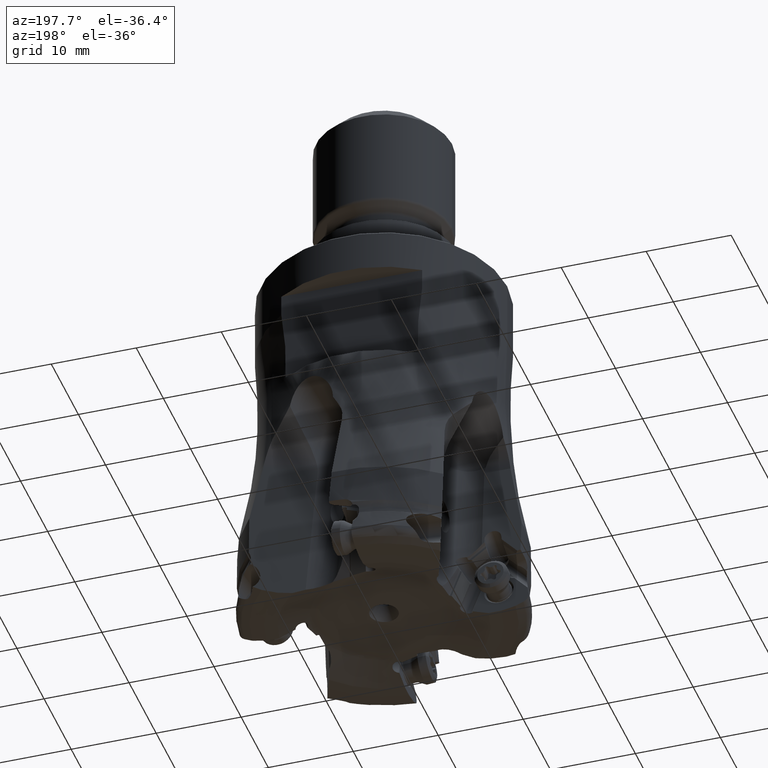
[diagram: clean part render]
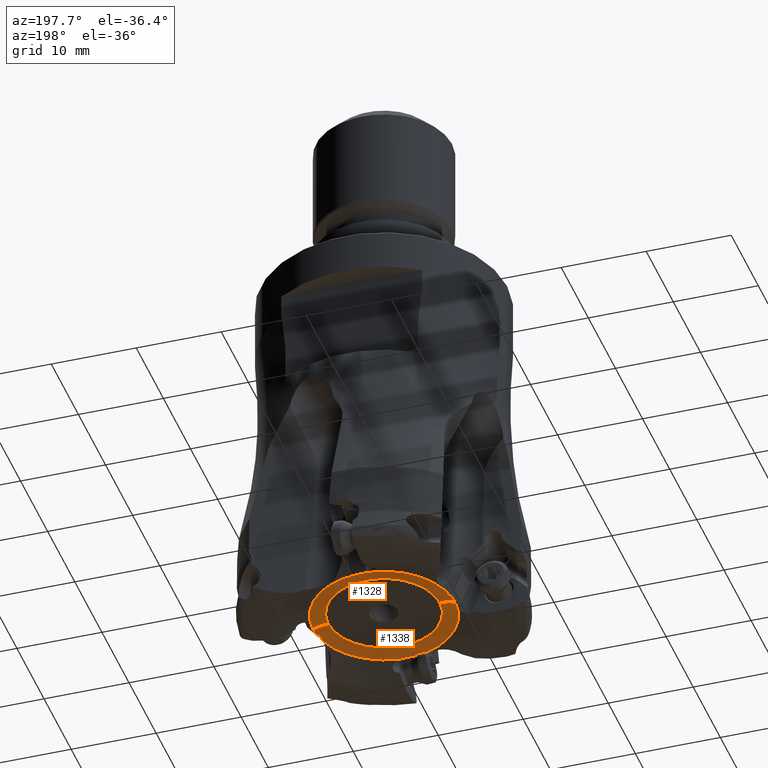
[diagram: same view with one multi-face feature highlighted, each face labeled with its STEP entity id]
A machine part, auxiliary view. The highlighted faces form ONE feature: a constant-radius fillet chain: 2 tangent blend faces with common blend radius 5 mm. The faces share edges in the B-rep.
Their STEP definitions:
[1] entity #1328 (Torus):
#129=TOROIDAL_SURFACE('',#9296,6.566225817198,4.999999999999);
#1328=ADVANCED_FACE('',(#1901),#129,.F.);
#1901=FACE_OUTER_BOUND('',#2384,.T.);
#2384=EDGE_LOOP('',(#3439,#3440,#3441,#3442,#3443,#3444,#3445,#3446,#3447,
#3448,#3449,#3450));
#2897=CIRCLE('',#9283,8.370834190696);
#2900=CIRCLE('',#9291,8.370834190696);
#2901=CIRCLE('',#9292,4.999999999999);
#2902=CIRCLE('',#9293,6.5662258172);
#2903=CIRCLE('',#9294,4.999999999999);
#2904=CIRCLE('',#9295,8.370834190696);
#3439=ORIENTED_EDGE('',*,*,#7209,.F.);
#3440=ORIENTED_EDGE('',*,*,#7210,.T.);
#3441=ORIENTED_EDGE('',*,*,#7211,.T.);
#3442=ORIENTED_EDGE('',*,*,#7212,.T.);
#3443=ORIENTED_EDGE('',*,*,#7193,.F.);
#3444=ORIENTED_EDGE('',*,*,#7208,.T.);
#3445=ORIENTED_EDGE('',*,*,#7213,.T.);
#3446=ORIENTED_EDGE('',*,*,#7214,.T.);
#3447=ORIENTED_EDGE('',*,*,#7215,.F.);
#3448=ORIENTED_EDGE('',*,*,#7216,.F.);
#3449=ORIENTED_EDGE('',*,*,#7217,.F.);
#3450=ORIENTED_EDGE('',*,*,#7218,.F.);
#6243=VERTEX_POINT('',#13287);
#6245=VERTEX_POINT('',#13290);
#6256=VERTEX_POINT('',#13373);
#6257=VERTEX_POINT('',#13382);
#6258=VERTEX_POINT('',#13383);
#6259=VERTEX_POINT('',#13385);
#6260=VERTEX_POINT('',#13387);
#6261=VERTEX_POINT('',#13402);
#6262=VERTEX_POINT('',#13407);
#6263=VERTEX_POINT('',#13409);
#6264=VERTEX_POINT('',#13416);
#6265=VERTEX_POINT('',#13430);
#7193=EDGE_CURVE('',#6243,#6245,#2897,.T.);
#7208=EDGE_CURVE('',#6243,#6256,#8595,.T.);
#7209=EDGE_CURVE('',#6257,#6258,#2900,.T.);
#7210=EDGE_CURVE('',#6257,#6259,#2901,.T.);
#7211=EDGE_CURVE('',#6259,#6260,#2902,.T.);
#7212=EDGE_CURVE('',#6260,#6245,#2903,.T.);
#7213=EDGE_CURVE('',#6256,#6261,#8596,.T.);
#7214=EDGE_CURVE('',#6261,#6262,#8597,.T.);
#7215=EDGE_CURVE('',#6263,#6262,#2904,.T.);
#7216=EDGE_CURVE('',#6264,#6263,#8598,.T.);
#7217=EDGE_CURVE('',#6265,#6264,#8599,.T.);
#7218=EDGE_CURVE('',#6258,#6265,#8600,.T.);
#8595=B_SPLINE_CURVE_WITH_KNOTS('',3,(#13374,#13375,#13376,#13377,#13378,
#13379),.UNSPECIFIED.,.F.,.F.,(4,1,1,4),(0.,0.3333333333333,0.6666666666667,
1.),.UNSPECIFIED.);
#8596=B_SPLINE_CURVE_WITH_KNOTS('',3,(#13389,#13390,#13391,#13392,#13393,
#13394,#13395,#13396,#13397,#13398,#13399,#13400,#13401),.UNSPECIFIED.,
 .F.,.F.,(4,1,1,1,1,1,1,1,1,1,4),(0.,0.1,0.2,0.3,0.4,0.5,0.6,0.7,0.8,0.9,
1.),.UNSPECIFIED.);
#8597=B_SPLINE_CURVE_WITH_KNOTS('',3,(#13403,#13404,#13405,#13406),
 .UNSPECIFIED.,.F.,.F.,(4,4),(0.,1.),.UNSPECIFIED.);
#8598=B_SPLINE_CURVE_WITH_KNOTS('',3,(#13410,#13411,#13412,#13413,#13414,
#13415),.UNSPECIFIED.,.F.,.F.,(4,1,1,4),(0.,0.3333333333333,0.6666666666667,
1.),.UNSPECIFIED.);
#8599=B_SPLINE_CURVE_WITH_KNOTS('',3,(#13417,#13418,#13419,#13420,#13421,
#13422,#13423,#13424,#13425,#13426,#13427,#13428,#13429),.UNSPECIFIED.,
 .F.,.F.,(4,1,1,1,1,1,1,1,1,1,4),(0.,0.1,0.2,0.3,0.4,0.5,0.6,0.7,0.8,0.9,
1.),.UNSPECIFIED.);
#8600=B_SPLINE_CURVE_WITH_KNOTS('',3,(#13431,#13432,#13433,#13434,#13435,
#13436),.UNSPECIFIED.,.F.,.F.,(4,1,1,4),(0.,0.3333333333333,0.6666666666667,
1.),.UNSPECIFIED.);
#9283=AXIS2_PLACEMENT_3D('',#13289,#10375,#10376);
#9291=AXIS2_PLACEMENT_3D('',#13381,#10394,#10395);
#9292=AXIS2_PLACEMENT_3D('',#13384,#10396,#10397);
#9293=AXIS2_PLACEMENT_3D('',#13386,#10398,#10399);
#9294=AXIS2_PLACEMENT_3D('',#13388,#10400,#10401);
#9295=AXIS2_PLACEMENT_3D('',#13408,#10402,#10403);
#9296=AXIS2_PLACEMENT_3D('',#13437,#10404,#10405);
#10375=DIRECTION('',(0.,0.,1.));
#10376=DIRECTION('',(-0.988644073315362,0.150276066951494,0.));
#10394=DIRECTION('',(0.,0.,1.));
#10395=DIRECTION('',(1.,0.,0.));
#10396=DIRECTION('',(0.,-1.,0.));
#10397=DIRECTION('',(0.360921674699783,0.,0.932596131630357));
#10398=DIRECTION('',(0.,0.,1.));
#10399=DIRECTION('',(1.,0.,0.));
#10400=DIRECTION('',(0.,-1.,0.));
#10401=DIRECTION('',(-4.57793525310371E-13,0.,1.));
#10402=DIRECTION('',(0.,0.,1.));
#10403=DIRECTION('',(0.150276066951494,0.988644073315362,0.));
#10404=DIRECTION('',(0.,0.,-1.));
#10405=DIRECTION('',(0.999998628329235,0.00165630300604606,0.));
#13287=CARTESIAN_POINT('',(-8.27577561133634,1.25793603928164,-42.9106520848031));
#13289=CARTESIAN_POINT('',(1.95399252334E-14,-1.516374499104E-14,-42.9106520848));
#13290=CARTESIAN_POINT('',(-8.370834190696,6.89732082502E-14,-42.9106520848));
#13373=CARTESIAN_POINT('',(-8.258263599804,1.257350126115,-42.90395506666));
#13374=CARTESIAN_POINT('',(-8.275775611338,1.257936039281,-42.9106520848));
#13375=CARTESIAN_POINT('',(-8.273831234403,1.257870619819,-42.90990433693));
#13376=CARTESIAN_POINT('',(-8.269941545582,1.257739992923,-42.90841126467));
#13377=CARTESIAN_POINT('',(-8.264104202645,1.257544688328,-42.90617892293));
#13378=CARTESIAN_POINT('',(-8.260210778349,1.257414909514,-42.9046955443));
#13379=CARTESIAN_POINT('',(-8.258263599804,1.257350126115,-42.90395506666));
#13381=CARTESIAN_POINT('',(1.95399252334E-14,-1.516374499104E-14,-42.9106520848));
#13382=CARTESIAN_POINT('',(8.370834190696,-1.344427087443E-14,-42.9106520848));
#13383=CARTESIAN_POINT('',(2.427920683142,8.010999183472,-42.91064450965));
#13384=CARTESIAN_POINT('',(6.566225817198,-1.433575480547E-14,-47.57363274295));
#13385=CARTESIAN_POINT('',(6.5662258172,-1.440514374452E-14,-42.57363274295));
#13386=CARTESIAN_POINT('',(1.95399252334E-14,-1.516842207395E-14,-42.57363274295));
#13387=CARTESIAN_POINT('',(-6.5662258172,0.,-42.57363274295));
#13388=CARTESIAN_POINT('',(-6.566225817198,0.,-47.57363274295));
#13389=CARTESIAN_POINT('',(-8.258263599804,1.257350126115,-42.90395506666));
#13390=CARTESIAN_POINT('',(-8.248514398632,1.257025766342,-42.9002476175));
#13391=CARTESIAN_POINT('',(-8.228913660003,1.258026944611,-42.89295879887));
#13392=CARTESIAN_POINT('',(-8.199897206746,1.264472959203,-42.88264872624));
#13393=CARTESIAN_POINT('',(-8.172082340296,1.275691875805,-42.8732274335));
#13394=CARTESIAN_POINT('',(-8.14617456712,1.291369643441,-42.86489695586));
#13395=CARTESIAN_POINT('',(-8.122751015214,1.311142230743,-42.85780433242));
#13396=CARTESIAN_POINT('',(-8.102321050327,1.334629970397,-42.85206770101));
#13397=CARTESIAN_POINT('',(-8.08546828145,1.361286246195,-42.84782168716));
#13398=CARTESIAN_POINT('',(-8.072728617774,1.390228794277,-42.84517006452));
#13399=CARTESIAN_POINT('',(-8.064292730606,1.421101612402,-42.84413706507));
#13400=CARTESIAN_POINT('',(-8.061768683534,1.442313439277,-42.84456107809));
#13401=CARTESIAN_POINT('',(-8.061295233986,1.452960582481,-42.84504997034));
#13402=CARTESIAN_POINT('',(-8.06129518926591,1.45296058119044,-42.8450499551385));
#13403=CARTESIAN_POINT('',(-8.06129518926591,1.45296058119044,-42.8450499551385));
#13404=CARTESIAN_POINT('',(-8.04682161123385,1.77844883483276,-42.8599956224347));
#13405=CARTESIAN_POINT('',(-8.03021326197871,2.10365333002213,-42.8813704957224));
#13406=CARTESIAN_POINT('',(-8.01099683249801,2.42791985319248,-42.9106520851623));
#13407=CARTESIAN_POINT('',(-8.01099683249801,2.42791985319248,-42.9106520851623));
#13408=CARTESIAN_POINT('',(1.95399252334E-14,-1.516374499104E-14,-42.9106520848));
#13409=CARTESIAN_POINT('',(1.25793603928074,8.27577561133712,-42.9106520848));
#13410=CARTESIAN_POINT('',(1.257350126114,8.258263599788,-42.90395506665));
#13411=CARTESIAN_POINT('',(1.257414915415,8.260210955736,-42.90469561176));
#13412=CARTESIAN_POINT('',(1.257544702154,8.264104616337,-42.90617908096));
#13413=CARTESIAN_POINT('',(1.257740006774,8.269941959134,-42.90841142299));
#13414=CARTESIAN_POINT('',(1.257870625779,8.273831411535,-42.90990440505));
#13415=CARTESIAN_POINT('',(1.257936039281,8.275775611337,-42.9106520848));
#13416=CARTESIAN_POINT('',(1.257350126114,8.258263599788,-42.90395506665));
#13417=CARTESIAN_POINT('',(1.452960582351,8.06129523399,-42.84504997032));
#13418=CARTESIAN_POINT('',(1.442321563633,8.061768322264,-42.84456145112));
#13419=CARTESIAN_POINT('',(1.421124211636,8.064289324744,-42.84413702217));
#13420=CARTESIAN_POINT('',(1.390264907497,8.07271646122,-42.84516824025));
#13421=CARTESIAN_POINT('',(1.361331800907,8.085444835886,-42.84781652783));
#13422=CARTESIAN_POINT('',(1.334681670789,8.102283192222,-42.85205734209));
#13423=CARTESIAN_POINT('',(1.311187905387,8.122704545214,-42.85779079432));
#13424=CARTESIAN_POINT('',(1.291405754993,8.146124136627,-42.86488140243));
#13425=CARTESIAN_POINT('',(1.275717720505,8.172029974459,-42.87320992926));
#13426=CARTESIAN_POINT('',(1.264485560305,8.199853521033,-42.88263344773));
#13427=CARTESIAN_POINT('',(1.258029072552,8.228888758612,-42.89294963588));
#13428=CARTESIAN_POINT('',(1.25702547253,8.248505567578,-42.9002442592));
#13429=CARTESIAN_POINT('',(1.257350126114,8.258263599788,-42.90395506665));
#13430=CARTESIAN_POINT('',(1.452960582351,8.06129523399,-42.84504997032));
#13431=CARTESIAN_POINT('',(2.427920683142,8.010999183472,-42.91064450965));
#13432=CARTESIAN_POINT('',(2.319935996017,8.017398488231,-42.90089338338));
#13433=CARTESIAN_POINT('',(2.103722571254,8.029613796134,-42.88316314587));
#13434=CARTESIAN_POINT('',(1.778671621938,8.046329918523,-42.86145091006));
#13435=CARTESIAN_POINT('',(1.561596996604,8.056464467629,-42.85003830384));
#13436=CARTESIAN_POINT('',(1.452960582351,8.06129523399,-42.84504997032));
#13437=CARTESIAN_POINT('',(1.95399252334E-14,-1.50990331349E-14,-47.57363274295));
[2] entity #1338 (Torus):
#130=TOROIDAL_SURFACE('',#9323,6.566225817198,4.999999999999);
#1338=ADVANCED_FACE('',(#1909),#130,.F.);
#1909=FACE_OUTER_BOUND('',#2396,.T.);
#2396=EDGE_LOOP('',(#3534,#3535,#3536,#3537,#3538,#3539,#3540,#3541,#3542,
#3543,#3544,#3545));
#2889=CIRCLE('',#9258,8.370834190696);
#2898=CIRCLE('',#9284,8.370834190696);
#2901=CIRCLE('',#9292,4.999999999999);
#2903=CIRCLE('',#9294,4.999999999999);
#2906=CIRCLE('',#9300,8.370834190696);
#2914=CIRCLE('',#9322,6.5662258172);
#3534=ORIENTED_EDGE('',*,*,#7131,.F.);
#3535=ORIENTED_EDGE('',*,*,#7182,.F.);
#3536=ORIENTED_EDGE('',*,*,#7185,.F.);
#3537=ORIENTED_EDGE('',*,*,#7188,.F.);
#3538=ORIENTED_EDGE('',*,*,#7194,.F.);
#3539=ORIENTED_EDGE('',*,*,#7212,.F.);
#3540=ORIENTED_EDGE('',*,*,#7283,.T.);
#3541=ORIENTED_EDGE('',*,*,#7210,.F.);
#3542=ORIENTED_EDGE('',*,*,#7231,.F.);
#3543=ORIENTED_EDGE('',*,*,#7282,.T.);
#3544=ORIENTED_EDGE('',*,*,#7284,.T.);
#3545=ORIENTED_EDGE('',*,*,#7285,.T.);
#6191=VERTEX_POINT('',#12770);
#6192=VERTEX_POINT('',#12772);
#6236=VERTEX_POINT('',#13207);
#6238=VERTEX_POINT('',#13225);
#6240=VERTEX_POINT('',#13254);
#6245=VERTEX_POINT('',#13290);
#6257=VERTEX_POINT('',#13382);
#6259=VERTEX_POINT('',#13385);
#6260=VERTEX_POINT('',#13387);
#6277=VERTEX_POINT('',#13537);
#6320=VERTEX_POINT('',#13946);
#6321=VERTEX_POINT('',#13968);
#7131=EDGE_CURVE('',#6191,#6192,#2889,.T.);
#7182=EDGE_CURVE('',#6236,#6191,#8581,.T.);
#7185=EDGE_CURVE('',#6238,#6236,#8582,.T.);
#7188=EDGE_CURVE('',#6240,#6238,#8584,.T.);
#7194=EDGE_CURVE('',#6245,#6240,#2898,.T.);
#7210=EDGE_CURVE('',#6257,#6259,#2901,.T.);
#7212=EDGE_CURVE('',#6260,#6245,#2903,.T.);
#7231=EDGE_CURVE('',#6277,#6257,#2906,.T.);
#7282=EDGE_CURVE('',#6277,#6320,#8634,.T.);
#7283=EDGE_CURVE('',#6260,#6259,#2914,.T.);
#7284=EDGE_CURVE('',#6320,#6321,#8635,.T.);
#7285=EDGE_CURVE('',#6321,#6192,#8636,.T.);
#8581=B_SPLINE_CURVE_WITH_KNOTS('',3,(#13201,#13202,#13203,#13204,#13205,
#13206),.UNSPECIFIED.,.F.,.F.,(4,1,1,4),(0.,0.3333333333333,0.6666666666667,
1.),.UNSPECIFIED.);
#8582=B_SPLINE_CURVE_WITH_KNOTS('',3,(#13212,#13213,#13214,#13215,#13216,
#13217,#13218,#13219,#13220,#13221,#13222,#13223,#13224),.UNSPECIFIED.,
 .F.,.F.,(4,1,1,1,1,1,1,1,1,1,4),(0.,0.1,0.2,0.3,0.4,0.5,0.6,0.7,0.8,0.9,
1.),.UNSPECIFIED.);
#8584=B_SPLINE_CURVE_WITH_KNOTS('',3,(#13248,#13249,#13250,#13251,#13252,
#13253),.UNSPECIFIED.,.F.,.F.,(4,1,1,4),(0.,0.3333333333333,0.6666666666667,
1.),.UNSPECIFIED.);
#8634=B_SPLINE_CURVE_WITH_KNOTS('',3,(#13947,#13948,#13949,#13950,#13951,
#13952),.UNSPECIFIED.,.F.,.F.,(4,1,1,4),(0.,0.3333333333333,0.6666666666667,
1.),.UNSPECIFIED.);
#8635=B_SPLINE_CURVE_WITH_KNOTS('',3,(#13955,#13956,#13957,#13958,#13959,
#13960,#13961,#13962,#13963,#13964,#13965,#13966,#13967),.UNSPECIFIED.,
 .F.,.F.,(4,1,1,1,1,1,1,1,1,1,4),(0.,0.1,0.2,0.3,0.4,0.5,0.6,0.7,0.8,0.9,
1.),.UNSPECIFIED.);
#8636=B_SPLINE_CURVE_WITH_KNOTS('',3,(#13969,#13970,#13971,#13972),
 .UNSPECIFIED.,.F.,.F.,(4,4),(0.,1.),.UNSPECIFIED.);
#9258=AXIS2_PLACEMENT_3D('',#12771,#10311,#10312);
#9284=AXIS2_PLACEMENT_3D('',#13291,#10377,#10378);
#9292=AXIS2_PLACEMENT_3D('',#13384,#10396,#10397);
#9294=AXIS2_PLACEMENT_3D('',#13388,#10400,#10401);
#9300=AXIS2_PLACEMENT_3D('',#13538,#10413,#10414);
#9322=AXIS2_PLACEMENT_3D('',#13954,#10470,#10471);
#9323=AXIS2_PLACEMENT_3D('',#13973,#10472,#10473);
#10311=DIRECTION('',(0.,0.,1.));
#10312=DIRECTION('',(-0.150276066951494,-0.988644073315362,0.));
#10377=DIRECTION('',(0.,0.,1.));
#10378=DIRECTION('',(-1.,1.005120294161E-14,0.));
#10396=DIRECTION('',(0.,-1.,0.));
#10397=DIRECTION('',(0.360921674699783,0.,0.932596131630357));
#10400=DIRECTION('',(0.,-1.,0.));
#10401=DIRECTION('',(-4.57793525310371E-13,0.,1.));
#10413=DIRECTION('',(0.,0.,1.));
#10414=DIRECTION('',(0.988644073315362,-0.150276066951494,0.));
#10470=DIRECTION('',(0.,0.,1.));
#10471=DIRECTION('',(-1.,0.,0.));
#10472=DIRECTION('',(0.,0.,-1.));
#10473=DIRECTION('',(-0.999998628329235,-0.00165630300604406,0.));
#12770=CARTESIAN_POINT('',(-1.25793603928389,-8.27577561133661,-42.9106520848014));
#12771=CARTESIAN_POINT('',(1.95399252334E-14,-1.516374499104E-14,-42.9106520848));
#12772=CARTESIAN_POINT('',(8.01099683242584,-2.42791985442001,-42.9106520852753));
#13201=CARTESIAN_POINT('',(-1.257350126114,-8.258263599788,-42.90395506665));
#13202=CARTESIAN_POINT('',(-1.257414915415,-8.260210955737,-42.90469561176));
#13203=CARTESIAN_POINT('',(-1.257544702154,-8.26410461634,-42.90617908096));
#13204=CARTESIAN_POINT('',(-1.257740006774,-8.269941959137,-42.90841142299));
#13205=CARTESIAN_POINT('',(-1.257870625779,-8.273831411537,-42.90990440505));
#13206=CARTESIAN_POINT('',(-1.257936039281,-8.275775611337,-42.9106520848));
#13207=CARTESIAN_POINT('',(-1.257350126114,-8.258263599788,-42.90395506665));
#13212=CARTESIAN_POINT('',(-1.452960582351,-8.061295233989,-42.84504997032));
#13213=CARTESIAN_POINT('',(-1.442321564075,-8.061768322243,-42.84456145114));
#13214=CARTESIAN_POINT('',(-1.42112421354,-8.064289324703,-42.84413702228));
#13215=CARTESIAN_POINT('',(-1.390264917026,-8.072716458115,-42.84516823976));
#13216=CARTESIAN_POINT('',(-1.361331810515,-8.085444830776,-42.84781652664));
#13217=CARTESIAN_POINT('',(-1.334681679533,-8.102283185616,-42.85205734032));
#13218=CARTESIAN_POINT('',(-1.311187910954,-8.122704539474,-42.85779079263));
#13219=CARTESIAN_POINT('',(-1.291405761035,-8.146124128652,-42.86488139996));
#13220=CARTESIAN_POINT('',(-1.275717726641,-8.172029962218,-42.87320992522));
#13221=CARTESIAN_POINT('',(-1.26448556307,-8.199853511415,-42.88263344438));
#13222=CARTESIAN_POINT('',(-1.258029073234,-8.228888751866,-42.8929496334));
#13223=CARTESIAN_POINT('',(-1.257025472448,-8.24850556511,-42.90024425826));
#13224=CARTESIAN_POINT('',(-1.257350126114,-8.258263599788,-42.90395506665));
#13225=CARTESIAN_POINT('',(-1.452960582351,-8.061295233989,-42.84504997032));
#13248=CARTESIAN_POINT('',(-2.427920677342,-8.01099905084,-42.91064445929));
#13249=CARTESIAN_POINT('',(-2.319935990044,-8.01739835504,-42.90089333471));
#13250=CARTESIAN_POINT('',(-2.103722574081,-8.029613858288,-42.88316316859));
#13251=CARTESIAN_POINT('',(-1.778671621173,-8.046329900764,-42.86145090358));
#13252=CARTESIAN_POINT('',(-1.561596996618,-8.056464467628,-42.85003830384));
#13253=CARTESIAN_POINT('',(-1.452960582351,-8.061295233989,-42.84504997032));
#13254=CARTESIAN_POINT('',(-2.427920677342,-8.01099905084,-42.91064445929));
#13290=CARTESIAN_POINT('',(-8.370834190696,6.89732082502E-14,-42.9106520848));
#13291=CARTESIAN_POINT('',(1.95399252334E-14,-1.516374499104E-14,-42.9106520848));
#13382=CARTESIAN_POINT('',(8.370834190696,-1.344427087443E-14,-42.9106520848));
#13384=CARTESIAN_POINT('',(6.566225817198,-1.433575480547E-14,-47.57363274295));
#13385=CARTESIAN_POINT('',(6.5662258172,-1.440514374452E-14,-42.57363274295));
#13387=CARTESIAN_POINT('',(-6.5662258172,0.,-42.57363274295));
#13388=CARTESIAN_POINT('',(-6.566225817198,0.,-47.57363274295));
#13537=CARTESIAN_POINT('',(8.27577561133672,-1.25793603928074,-42.9106520848024));
#13538=CARTESIAN_POINT('',(1.95399252334E-14,-1.516374499104E-14,-42.9106520848));
#13946=CARTESIAN_POINT('',(8.258263599781,-1.257350126114,-42.90395506665));
#13947=CARTESIAN_POINT('',(8.275775611337,-1.257936039281,-42.9106520848));
#13948=CARTESIAN_POINT('',(8.273831234382,-1.257870619819,-42.90990433692));
#13949=CARTESIAN_POINT('',(8.269941545533,-1.257739992921,-42.90841126465));
#13950=CARTESIAN_POINT('',(8.264104202589,-1.257544688325,-42.90617892291));
#13951=CARTESIAN_POINT('',(8.260210778311,-1.257414909512,-42.90469554429));
#13952=CARTESIAN_POINT('',(8.258263599781,-1.257350126114,-42.90395506665));
#13954=CARTESIAN_POINT('',(1.95399252334E-14,-1.516842207395E-14,-42.57363274295));
#13955=CARTESIAN_POINT('',(8.258263599781,-1.257350126114,-42.90395506665));
#13956=CARTESIAN_POINT('',(8.248514396449,-1.25702576627,-42.90024761666));
#13957=CARTESIAN_POINT('',(8.228913654488,-1.258026944761,-42.89295879681));
#13958=CARTESIAN_POINT('',(8.199897193128,-1.264472963712,-42.88264872153));
#13959=CARTESIAN_POINT('',(8.172082335325,-1.275691877815,-42.87322743182));
#13960=CARTESIAN_POINT('',(8.14617453928,-1.291369661604,-42.86489694703));
#13961=CARTESIAN_POINT('',(8.122750987235,-1.311142259783,-42.85780432434));
#13962=CARTESIAN_POINT('',(8.102321047417,-1.33462997682,-42.85206770037));
#13963=CARTESIAN_POINT('',(8.085468288456,-1.361286235356,-42.84782168894));
#13964=CARTESIAN_POINT('',(8.072728626717,-1.390228767188,-42.84517006597));
#13965=CARTESIAN_POINT('',(8.064292728661,-1.421101616293,-42.84413706464));
#13966=CARTESIAN_POINT('',(8.061768683446,-1.442313441385,-42.84456107817));
#13967=CARTESIAN_POINT('',(8.061295233997,-1.452960582355,-42.84504997032));
#13968=CARTESIAN_POINT('',(8.06129518927511,-1.45296058106402,-42.8450499551258));
#13969=CARTESIAN_POINT('',(8.06129518927511,-1.45296058106402,-42.8450499551258));
#13970=CARTESIAN_POINT('',(8.04682161122326,-1.77844883515942,-42.8599956224411));
#13971=CARTESIAN_POINT('',(8.03021326194678,-2.1036533308028,-42.8813704957544));
#13972=CARTESIAN_POINT('',(8.01099683242584,-2.42791985442001,-42.9106520852753));
#13973=CARTESIAN_POINT('',(1.95399252334E-14,-1.50990331349E-14,-47.57363274295));